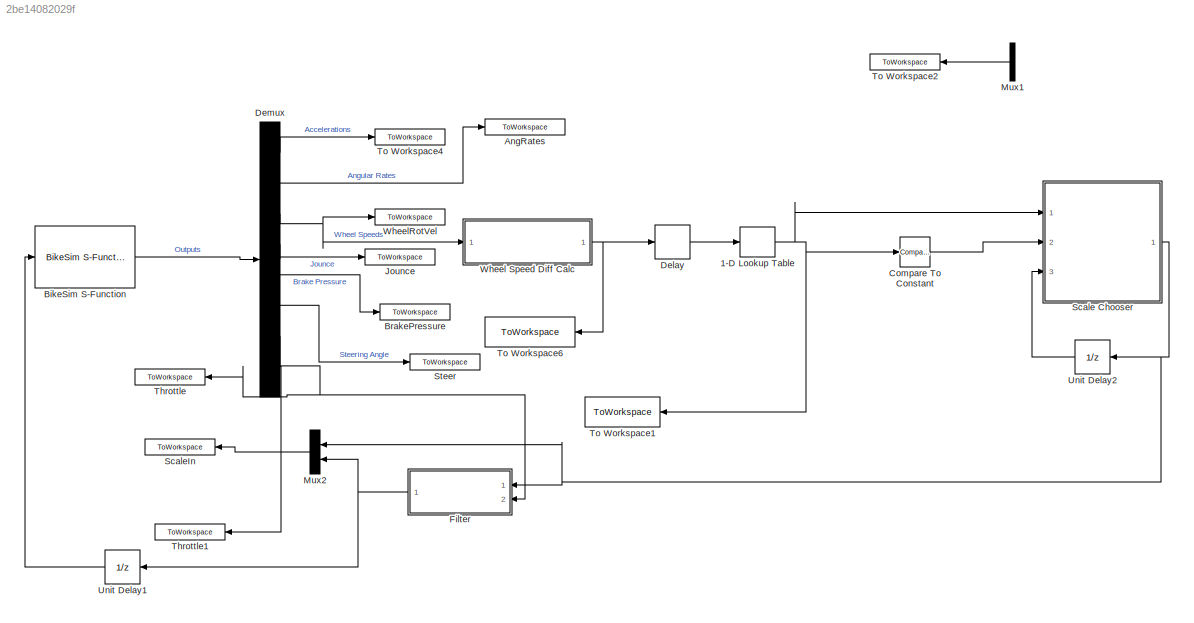
MODEL slx_2be14082029f
KIND model
BLOCK [Lookup_n-D] 1-D Lookup Table
  BreakpointsForDimension1 = y
  ExtrapMethod = Clip
  InternalRulePriority = Speed
  InterpMethod = Flat
  NumberOfTableDimensions = 1
  Ports = [1, 1]
  RndMeth = Simplest
  Table = [1.0000,0.9909,0.9818,0.9727,0.9636,0.9545,0.9455,0.9364,0.9273,0.9182,0.9091,0.9000,0.8909,0.8818,0.8727,0.8636,0.8545,0.8455,0.8364,0.8273,0.8182,0.8091,0.8000,0.7909,0.7818,0.7727,0.7636,0.7545,0.7455,0.7364,0.7273,0.7182,0.7091,0.7000,0.6909,0.6818,0.6727, 0.6636,0.6545,0.6455,0.6364,0.6273,0.6182,0.6091,0.6000,0.5909,0.5818,0.5727,0.5636,0.5545,0.5455,0.5364,0.5273,0.5182,0.5091,0.50, 0.4909,...<+298ch>
  UseLastTableValue = on
BLOCK [ToWorkspace] AngRates
  FixptAsFi = on
  MaxDataPoints = inf
  Ports = [1]
  SampleTime = -1
  Save2DSignal = 3-D array (concatenate along third dimension)
  SaveFormat = Timeseries
  VariableName = AngRates
BLOCK [Reference] BikeSim S-Function  REF=Solver_SF/BikeSim S-Function
  AttributesFormatString = Vehicle Code: %<VehicleCode>
  Ports = [1, 1]
  Priority = 1
  SIMFILE = simfile.sim
  SourceBlock = Solver_SF/BikeSim S-Function
  SourceType = Vehicle math model library
  VehicleCode = fixed_caster
BLOCK [ToWorkspace] BrakePressure
  FixptAsFi = on
  MaxDataPoints = inf
  Ports = [1]
  SampleTime = -1
  Save2DSignal = 3-D array (concatenate along third dimension)
  SaveFormat = Timeseries
  VariableName = BrakePressure
BLOCK [Reference] Compare To Constant  REF=simulink/Logic and Bit
Operations/Compare
To Constant
  OutDataTypeStr = boolean
  Ports = [1, 1]
  SourceBlock = simulink/Logic and Bit\nOperations/Compare\nTo Constant
  SourceType = Compare To Constant
  ZeroCross = on
  const = 1
  relop = ~=
BLOCK [Delay] Delay
  DelayLength = 10
  InputPortMap = u0
  Ports = [1, 1]
BLOCK [Demux] Demux
  Outputs = [3 2 2 2 2 1 1 3]
  Ports = [1, 8]
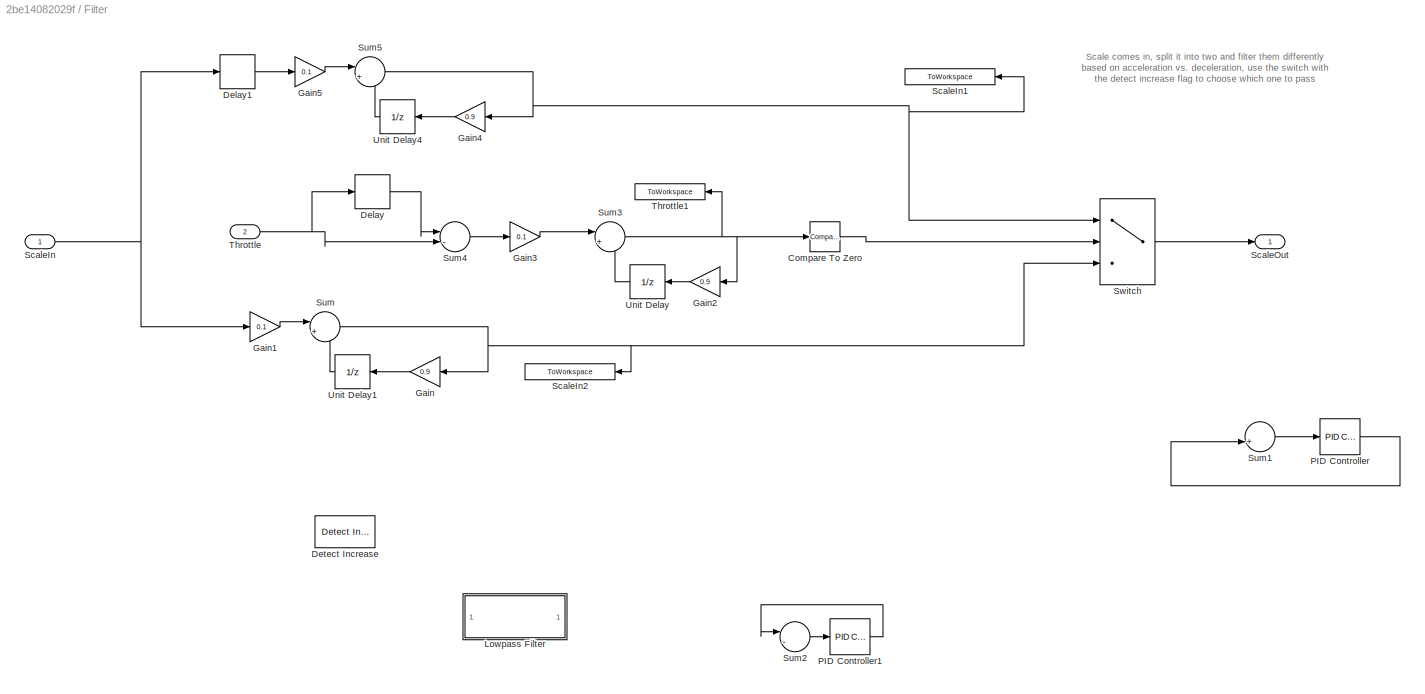
BLOCK [SubSystem] Filter
  Ports = [2, 1]
  RequestExecContextInheritance = off
BLOCK [Reference] Filter/Compare To Zero  REF=simulink/Logic and Bit
Operations/Compare
To Zero
  OutDataTypeStr = boolean
  Ports = [1, 1]
  SourceBlock = simulink/Logic and Bit\nOperations/Compare\nTo Zero
  SourceType = Compare To Zero
  ZeroCross = on
  relop = >
BLOCK [Delay] Filter/Delay
  DelayLength = 15
  InputPortMap = u0
  Ports = [1, 1]
BLOCK [Delay] Filter/Delay1
  DelayLength = 10
  InputPortMap = u0
  Ports = [1, 1]
BLOCK [Reference] Filter/Detect Increase  REF=simulink/Logic and Bit
Operations/Detect
Increase
  InputProcessing = Inherited
  OutDataTypeStr = uint8
  Ports = [1, 1]
  SourceBlock = simulink/Logic and Bit\nOperations/Detect\nIncrease
  SourceType = Detect Increase
  vinit = 0.0
BLOCK [Gain] Filter/Gain
  Gain = 0.9
  OutDataTypeStr = Inherit: Inherit via internal rule
  ParamDataTypeStr = Inherit: Inherit via internal rule
  SaturateOnIntegerOverflow = off
BLOCK [Gain] Filter/Gain1
  Gain = 0.1
  OutDataTypeStr = Inherit: Inherit via internal rule
  ParamDataTypeStr = Inherit: Inherit via internal rule
  SaturateOnIntegerOverflow = off
BLOCK [Gain] Filter/Gain2
  Gain = 0.9
  OutDataTypeStr = Inherit: Inherit via internal rule
  ParamDataTypeStr = Inherit: Inherit via internal rule
  SaturateOnIntegerOverflow = off
BLOCK [Gain] Filter/Gain3
  Gain = 0.1
  OutDataTypeStr = Inherit: Inherit via internal rule
  ParamDataTypeStr = Inherit: Inherit via internal rule
  SaturateOnIntegerOverflow = off
BLOCK [Gain] Filter/Gain4
  Gain = 0.9
  OutDataTypeStr = Inherit: Inherit via internal rule
  ParamDataTypeStr = Inherit: Inherit via internal rule
  SaturateOnIntegerOverflow = off
BLOCK [Gain] Filter/Gain5
  Gain = 0.1
  OutDataTypeStr = Inherit: Inherit via internal rule
  ParamDataTypeStr = Inherit: Inherit via internal rule
  SaturateOnIntegerOverflow = off
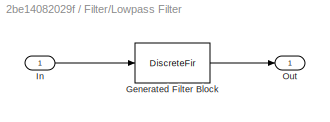
BLOCK [SubSystem] Filter/Lowpass Filter
  CopyFcn = fdesignblkfcn(gcbh, {'CopyFcn'});
  DialogController = fdesignblkfcn
  InitFcn = fdesignblkfcn(gcbh, {'InitFcn'});
  Ports = [1, 1]
  RequestExecContextInheritance = off
  UserDataPersistent = on
BLOCK [DiscreteFir] Filter/Lowpass Filter/Generated Filter Block
  Coefficients = [-0.0024228738523269142 -0.002083244982079274 0.0067703446401187091 0.016731945423489058 0.011117076081077608 -0.0062311454141445394 -0.008401617186026911 0.0092567976151380175 0.012982883808855752 -0.010121234703278968 -0.018273518733782485 0.011431962071777957 0.02617588858040763 -0.012489027835322923 -0.037996623145463579 0.013388945199366963 0.058155465814729891 -0.014048043515808939 -0.102724...<+525ch>
  InputProcessing = Columns as channels (frame based)
  Ports = [1, 1]
  Tag = BlockMethodSubSystem
BLOCK [Inport] Filter/Lowpass Filter/In
  IconDisplay = Port number
BLOCK [Outport] Filter/Lowpass Filter/Out
  IconDisplay = Port number
BLOCK [Reference] Filter/PID Controller  REF=simulink/Continuous/PID Controller
  AntiWindupMode = none
  Controller = PID
  D = 0.01
  DOutDataTypeStr = Inherit: Inherit via internal rule
  DOutMax = []
  DOutMin = []
  DParamDataTypeStr = Inherit: Inherit via internal rule
  DParamMax = []
  DParamMin = []
  ExternalReset = none
  FilterContinuousStateAttributes = ''
  FilterMethod = Forward Euler
  FilterOutDataTypeStr = Inherit: Inherit via internal rule
  FilterOutMax = []
  FilterOutMin = []
  FilterRTWStateStorageClass = Auto
  FilterStateMustResolveToSignalObject = off
  Form = Parallel
  I = 0.4
  IOutDataTypeStr = Inherit: Inherit via internal rule
  IOutMax = []
  IOutMin = []
  IParamDataTypeStr = Inherit: Inherit via internal rule
  IParamMax = []
  IParamMin = []
  IgnoreLimit = off
  InitialConditionForFilter = 0
  InitialConditionForIntegrator = 1
  InitialConditionSource = internal
  IntegratorContinuousStateAttributes = ''
  IntegratorMethod = Forward Euler
  IntegratorOutDataTypeStr = Inherit: Inherit via internal rule
  IntegratorOutMax = []
  IntegratorOutMin = []
  IntegratorRTWStateStorageClass = Auto
  IntegratorStateMustResolveToSignalObject = off
  Kb = 1
  KbOutDataTypeStr = Inherit: Inherit via internal rule
  KbOutMax = []
  KbOutMin = []
  KbParamDataTypeStr = Inherit: Inherit via internal rule
  KbParamMax = []
  KbParamMin = []
  Kt = 1
  KtOutDataTypeStr = Inherit: Inherit via internal rule
  KtOutMax = []
  KtOutMin = []
  KtParamDataTypeStr = Inherit: Inherit via internal rule
  KtParamMax = []
  KtParamMin = []
  LimitOutput = off
  LinearizeAsGain = on
  LockScale = off
  LowerSaturationLimit = -inf
  N = 100
  NOutDataTypeStr = Inherit: Inherit via internal rule
  NOutMax = []
  NOutMin = []
  NParamDataTypeStr = Inherit: Inherit via internal rule
  NParamMax = []
  NParamMin = []
  P = 0.01
  POutDataTypeStr = Inherit: Inherit via internal rule
  POutMax = []
  POutMin = []
  PParamDataTypeStr = Inherit: Inherit via internal rule
  PParamMax = []
  PParamMin = []
  Ports = [1, 1]
  RndMeth = Floor
  SampleTime = 1
  SaturateOnIntegerOverflow = off
  SaturationOutDataTypeStr = Inherit: Same as input
  SaturationOutMax = []
  SaturationOutMin = []
  SourceBlock = simulink/Continuous/PID Controller
  SourceType = PID 1dof
  SumAccumDataTypeStr = Inherit: Inherit via internal rule
  SumDAccumDataTypeStr = Inherit: Inherit via internal rule
  SumDOutDataTypeStr = Inherit: Inherit via internal rule
  SumDOutMax = []
  SumDOutMin = []
  SumI1AccumDataTypeStr = Inherit: Inherit via internal rule
  SumI1OutDataTypeStr = Inherit: Inherit via internal rule
  SumI1OutMax = []
  SumI1OutMin = []
  SumI2AccumDataTypeStr = Inherit: Inherit via internal rule
  SumI2OutDataTypeStr = Inherit: Inherit via internal rule
  SumI2OutMax = []
  SumI2OutMin = []
  SumI3AccumDataTypeStr = Inherit: Inherit via internal rule
  SumI3OutDataTypeStr = Inherit: Inherit via internal rule
  SumI3OutMax = []
  SumI3OutMin = []
  SumOutDataTypeStr = Inherit: Inherit via internal rule
  SumOutMax = []
  SumOutMin = []
  TimeDomain = Continuous-time
  TrackingMode = off
  UpperSaturationLimit = inf
  ZeroCross = on
BLOCK [Reference] Filter/PID Controller1  REF=simulink/Continuous/PID Controller
  AntiWindupMode = none
  Controller = PID
  D = 0
  DOutDataTypeStr = Inherit: Inherit via internal rule
  DOutMax = []
  DOutMin = []
  DParamDataTypeStr = Inherit: Inherit via internal rule
  DParamMax = []
  DParamMin = []
  ExternalReset = none
  FilterContinuousStateAttributes = ''
  FilterMethod = Forward Euler
  FilterOutDataTypeStr = Inherit: Inherit via internal rule
  FilterOutMax = []
  FilterOutMin = []
  FilterRTWStateStorageClass = Auto
  FilterStateMustResolveToSignalObject = off
  Form = Parallel
  I = 0.602559586074357
  IOutDataTypeStr = Inherit: Inherit via internal rule
  IOutMax = []
  IOutMin = []
  IParamDataTypeStr = Inherit: Inherit via internal rule
  IParamMax = []
  IParamMin = []
  IgnoreLimit = off
  InitialConditionForFilter = 0
  InitialConditionForIntegrator = 1
  InitialConditionSource = internal
  IntegratorContinuousStateAttributes = ''
  IntegratorMethod = Forward Euler
  IntegratorOutDataTypeStr = Inherit: Inherit via internal rule
  IntegratorOutMax = []
  IntegratorOutMin = []
  IntegratorRTWStateStorageClass = Auto
  IntegratorStateMustResolveToSignalObject = off
  Kb = 1
  KbOutDataTypeStr = Inherit: Inherit via internal rule
  KbOutMax = []
  KbOutMin = []
  KbParamDataTypeStr = Inherit: Inherit via internal rule
  KbParamMax = []
  KbParamMin = []
  Kt = 1
  KtOutDataTypeStr = Inherit: Inherit via internal rule
  KtOutMax = []
  KtOutMin = []
  KtParamDataTypeStr = Inherit: Inherit via internal rule
  KtParamMax = []
  KtParamMin = []
  LimitOutput = off
  LinearizeAsGain = on
  LockScale = off
  LowerSaturationLimit = -inf
  N = 100
  NOutDataTypeStr = Inherit: Inherit via internal rule
  NOutMax = []
  NOutMin = []
  NParamDataTypeStr = Inherit: Inherit via internal rule
  NParamMax = []
  NParamMin = []
  P = 0
  POutDataTypeStr = Inherit: Inherit via internal rule
  POutMax = []
  POutMin = []
  PParamDataTypeStr = Inherit: Inherit via internal rule
  PParamMax = []
  PParamMin = []
  Ports = [1, 1]
  RndMeth = Floor
  SampleTime = 1
  SaturateOnIntegerOverflow = off
  SaturationOutDataTypeStr = Inherit: Same as input
  SaturationOutMax = []
  SaturationOutMin = []
  SourceBlock = simulink/Continuous/PID Controller
  SourceType = PID 1dof
  SumAccumDataTypeStr = Inherit: Inherit via internal rule
  SumDAccumDataTypeStr = Inherit: Inherit via internal rule
  SumDOutDataTypeStr = Inherit: Inherit via internal rule
  SumDOutMax = []
  SumDOutMin = []
  SumI1AccumDataTypeStr = Inherit: Inherit via internal rule
  SumI1OutDataTypeStr = Inherit: Inherit via internal rule
  SumI1OutMax = []
  SumI1OutMin = []
  SumI2AccumDataTypeStr = Inherit: Inherit via internal rule
  SumI2OutDataTypeStr = Inherit: Inherit via internal rule
  SumI2OutMax = []
  SumI2OutMin = []
  SumI3AccumDataTypeStr = Inherit: Inherit via internal rule
  SumI3OutDataTypeStr = Inherit: Inherit via internal rule
  SumI3OutMax = []
  SumI3OutMin = []
  SumOutDataTypeStr = Inherit: Inherit via internal rule
  SumOutMax = []
  SumOutMin = []
  TimeDomain = Continuous-time
  TrackingMode = off
  UpperSaturationLimit = inf
  ZeroCross = on
BLOCK [Inport] Filter/ScaleIn
  IconDisplay = Port number
BLOCK [ToWorkspace] Filter/ScaleIn1
  FixptAsFi = on
  MaxDataPoints = inf
  Ports = [1]
  SampleTime = -1
  Save2DSignal = 3-D array (concatenate along third dimension)
  SaveFormat = Timeseries
  VariableName = UpScale
BLOCK [ToWorkspace] Filter/ScaleIn2
  FixptAsFi = on
  MaxDataPoints = inf
  Ports = [1]
  SampleTime = -1
  Save2DSignal = 3-D array (concatenate along third dimension)
  SaveFormat = Timeseries
  VariableName = DownScale
BLOCK [Outport] Filter/ScaleOut
  IconDisplay = Port number
BLOCK [Sum] Filter/Sum
  IconShape = round
  InputSameDT = off
  Inputs = |++
  OutDataTypeStr = Inherit: Inherit via internal rule
  Ports = [2, 1]
  SaturateOnIntegerOverflow = off
BLOCK [Sum] Filter/Sum1
  InputSameDT = off
  Inputs = |+-
  OutDataTypeStr = Inherit: Inherit via internal rule
  Ports = [2, 1]
  SaturateOnIntegerOverflow = off
BLOCK [Sum] Filter/Sum2
  InputSameDT = off
  Inputs = |-+
  OutDataTypeStr = Inherit: Inherit via internal rule
  Ports = [2, 1]
  SaturateOnIntegerOverflow = off
BLOCK [Sum] Filter/Sum3
  IconShape = round
  InputSameDT = off
  Inputs = |++
  OutDataTypeStr = Inherit: Inherit via internal rule
  Ports = [2, 1]
  SaturateOnIntegerOverflow = off
BLOCK [Sum] Filter/Sum4
  InputSameDT = off
  Inputs = |-+
  OutDataTypeStr = Inherit: Inherit via internal rule
  Ports = [2, 1]
  SaturateOnIntegerOverflow = off
BLOCK [Sum] Filter/Sum5
  IconShape = round
  InputSameDT = off
  Inputs = |++
  OutDataTypeStr = Inherit: Inherit via internal rule
  Ports = [2, 1]
  SaturateOnIntegerOverflow = off
BLOCK [Switch] Filter/Switch
  Criteria = u2 ~= 0
  InputSameDT = off
  OutMax = [1]
  OutMin = [0.1]
  SaturateOnIntegerOverflow = off
BLOCK [Inport] Filter/Throttle
  IconDisplay = Port number
  Port = 2
BLOCK [ToWorkspace] Filter/Throttle1
  FixptAsFi = on
  MaxDataPoints = inf
  Ports = [1]
  SampleTime = -1
  Save2DSignal = 3-D array (concatenate along third dimension)
  SaveFormat = Timeseries
  VariableName = ThrotDiff
BLOCK [UnitDelay] Filter/Unit Delay
  InputProcessing = Elements as channels (sample based)
  SampleTime = -1
BLOCK [UnitDelay] Filter/Unit Delay1
  InputProcessing = Elements as channels (sample based)
  SampleTime = -1
BLOCK [UnitDelay] Filter/Unit Delay4
  InputProcessing = Elements as channels (sample based)
  SampleTime = -1
BLOCK [ToWorkspace] Jounce
  FixptAsFi = on
  MaxDataPoints = inf
  Ports = [1]
  SampleTime = -1
  Save2DSignal = 3-D array (concatenate along third dimension)
  SaveFormat = Timeseries
  VariableName = Jounce
BLOCK [Mux] Mux1
  DisplayOption = bar
  Inputs = 2
  Ports = [2, 1]
BLOCK [Mux] Mux2
  DisplayOption = bar
  Inputs = 2
  Ports = [2, 1]
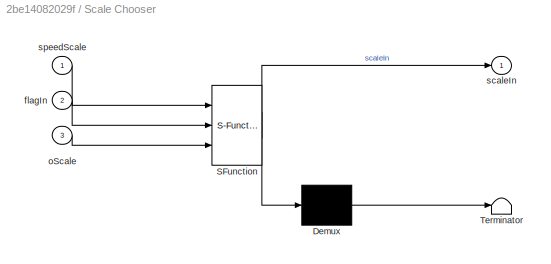
BLOCK [SubSystem] Scale Chooser
  ErrorFcn = Stateflow.Translate.translate
  PermitHierarchicalResolution = ExplicitOnly
  Ports = [3, 1]
  RequestExecContextInheritance = off
  SFBlockType = MATLAB Function
  TreatAsAtomicUnit = on
BLOCK [Demux] Scale Chooser/ Demux 
  Outputs = 1
  Ports = [1, 1]
BLOCK [S-Function] Scale Chooser/ SFunction 
  EnableBusSupport = on
  FunctionName = sf_sfun
  PortCounts = [3 2]
  Ports = [3, 2]
  Tag = Stateflow S-Function SimpleTractionModel 2
BLOCK [Terminator] Scale Chooser/ Terminator 
BLOCK [Inport] Scale Chooser/flagIn
  IconDisplay = Port number
  Port = 2
BLOCK [Inport] Scale Chooser/oScale
  IconDisplay = Port number
  Port = 3
BLOCK [Outport] Scale Chooser/scaleIn
  IconDisplay = Port number
BLOCK [Inport] Scale Chooser/speedScale
  IconDisplay = Port number
BLOCK [ToWorkspace] ScaleIn
  FixptAsFi = on
  MaxDataPoints = inf
  Ports = [1]
  SampleTime = -1
  Save2DSignal = 3-D array (concatenate along third dimension)
  SaveFormat = Timeseries
  VariableName = ScaleIn
BLOCK [ToWorkspace] Steer
  FixptAsFi = on
  MaxDataPoints = inf
  Ports = [1]
  SampleTime = -1
  Save2DSignal = 3-D array (concatenate along third dimension)
  SaveFormat = Timeseries
  VariableName = Steer
BLOCK [ToWorkspace] Throttle
  FixptAsFi = on
  MaxDataPoints = inf
  Ports = [1]
  SampleTime = -1
  Save2DSignal = 3-D array (concatenate along third dimension)
  SaveFormat = Timeseries
  VariableName = ThrottleOut
BLOCK [ToWorkspace] Throttle1
  FixptAsFi = on
  MaxDataPoints = inf
  Ports = [1]
  SampleTime = -1
  Save2DSignal = 3-D array (concatenate along third dimension)
  SaveFormat = Timeseries
  VariableName = Torque
BLOCK [ToWorkspace] To Workspace1
  FixptAsFi = on
  MaxDataPoints = inf
  Ports = [1]
  SampleTime = -1
  Save2DSignal = 3-D array (concatenate along third dimension)
  SaveFormat = Timeseries
  VariableName = ScalingFactors
BLOCK [ToWorkspace] To Workspace2
  FixptAsFi = on
  MaxDataPoints = inf
  Ports = [1]
  SampleTime = -1
  Save2DSignal = 3-D array (concatenate along third dimension)
  SaveFormat = Timeseries
  VariableName = flag
BLOCK [ToWorkspace] To Workspace4
  FixptAsFi = on
  MaxDataPoints = inf
  Ports = [1]
  SampleTime = -1
  Save2DSignal = 3-D array (concatenate along third dimension)
  SaveFormat = Timeseries
  VariableName = Accelerations
BLOCK [ToWorkspace] To Workspace6
  FixptAsFi = on
  MaxDataPoints = inf
  Ports = [1]
  SampleTime = -1
  Save2DSignal = 3-D array (concatenate along third dimension)
  SaveFormat = Timeseries
  VariableName = WheelSpeedDiff
BLOCK [UnitDelay] Unit Delay1
  InputProcessing = Elements as channels (sample based)
  SampleTime = -1
BLOCK [UnitDelay] Unit Delay2
  InputProcessing = Elements as channels (sample based)
  SampleTime = -1
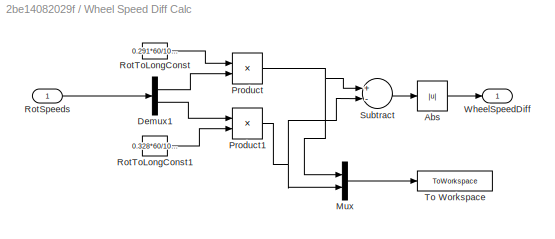
BLOCK [SubSystem] Wheel Speed Diff Calc
  Ports = [1, 1]
  RequestExecContextInheritance = off
BLOCK [Abs] Wheel Speed Diff Calc/Abs
  SaturateOnIntegerOverflow = off
BLOCK [Demux] Wheel Speed Diff Calc/Demux1
  DisplayOption = bar
  Outputs = 2
  Ports = [1, 2]
BLOCK [Mux] Wheel Speed Diff Calc/Mux
  DisplayOption = bar
  Inputs = 2
  Ports = [2, 1]
BLOCK [Product] Wheel Speed Diff Calc/Product
  InputSameDT = off
  OutDataTypeStr = Inherit: Inherit via internal rule
  Ports = [2, 1]
  RndMeth = Floor
  SaturateOnIntegerOverflow = off
BLOCK [Product] Wheel Speed Diff Calc/Product1
  InputSameDT = off
  OutDataTypeStr = Inherit: Inherit via internal rule
  Ports = [2, 1]
  RndMeth = Floor
  SaturateOnIntegerOverflow = off
BLOCK [Inport] Wheel Speed Diff Calc/RotSpeeds
  IconDisplay = Port number
BLOCK [Constant] Wheel Speed Diff Calc/RotToLongConst
  Value = 0.291*60/1000*2*pi
BLOCK [Constant] Wheel Speed Diff Calc/RotToLongConst1
  Value = 0.328*60/1000*2*pi
BLOCK [Sum] Wheel Speed Diff Calc/Subtract
  InputSameDT = off
  Inputs = +-
  OutDataTypeStr = Inherit: Inherit via internal rule
  Ports = [2, 1]
  SaturateOnIntegerOverflow = off
BLOCK [ToWorkspace] Wheel Speed Diff Calc/To Workspace
  FixptAsFi = on
  MaxDataPoints = inf
  Ports = [1]
  SampleTime = -1
  Save2DSignal = 3-D array (concatenate along third dimension)
  SaveFormat = Timeseries
  VariableName = WheelLongVel
BLOCK [Outport] Wheel Speed Diff Calc/WheelSpeedDiff
  IconDisplay = Port number
BLOCK [ToWorkspace] WheelRotVel
  FixptAsFi = on
  MaxDataPoints = inf
  Ports = [1]
  SampleTime = -1
  Save2DSignal = 3-D array (concatenate along third dimension)
  SaveFormat = Timeseries
  VariableName = WheelRotVel
ANNOTATION Filter: Scale comes in, split it into two and filter them differently based on acceleration vs. deceleration, use the switch with the detect increase flag to choose which one to pass
NET 1-D Lookup Table:1 -> Compare To Constant:1, Scale Chooser:1, To Workspace1:1
LINE BikeSim S-Function:1 -> Demux:1
LINE Compare To Constant:1 -> Scale Chooser:2
LINE Delay:1 -> 1-D Lookup Table:1
LINE Demux:1 -> To Workspace4:1
LINE Demux:2 -> AngRates:1
NET Demux:3 -> Wheel Speed Diff Calc:1, WheelRotVel:1
LINE Demux:4 -> Jounce:1
LINE Demux:5 -> BrakePressure:1
LINE Demux:6 -> Steer:1
NET Demux:7 -> Filter:2, Throttle:1
LINE Demux:8 -> Throttle1:1
LINE Filter/Compare To Zero:1 -> Filter/Switch:2
LINE Filter/Delay1:1 -> Filter/Gain5:1
LINE Filter/Delay:1 -> Filter/Sum4:1
LINE Filter/Gain1:1 -> Filter/Sum:1
LINE Filter/Gain2:1 -> Filter/Unit Delay:1
LINE Filter/Gain3:1 -> Filter/Sum3:1
LINE Filter/Gain4:1 -> Filter/Unit Delay4:1
LINE Filter/Gain5:1 -> Filter/Sum5:1
LINE Filter/Gain:1 -> Filter/Unit Delay1:1
LINE Filter/PID Controller1:1 -> Filter/Sum2:1
LINE Filter/PID Controller:1 -> Filter/Sum1:2
NET Filter/ScaleIn:1 -> Filter/Delay1:1, Filter/Gain1:1
LINE Filter/Sum1:1 -> Filter/PID Controller:1
LINE Filter/Sum2:1 -> Filter/PID Controller1:1
NET Filter/Sum3:1 -> Filter/Compare To Zero:1, Filter/Gain2:1, Filter/Throttle1:1
LINE Filter/Sum4:1 -> Filter/Gain3:1
NET Filter/Sum5:1 -> Filter/Gain4:1, Filter/ScaleIn1:1, Filter/Switch:1
NET Filter/Sum:1 -> Filter/Gain:1, Filter/ScaleIn2:1, Filter/Switch:3
LINE Filter/Switch:1 -> Filter/ScaleOut:1
NET Filter/Throttle:1 -> Filter/Delay:1, Filter/Sum4:2
LINE Filter/Unit Delay1:1 -> Filter/Sum:2
LINE Filter/Unit Delay4:1 -> Filter/Sum5:2
LINE Filter/Unit Delay:1 -> Filter/Sum3:2
NET Filter:1 -> Mux2:2, Unit Delay1:1
LINE Mux1:1 -> To Workspace2:1
LINE Mux2:1 -> ScaleIn:1
NET Scale Chooser:1 -> Filter:1, Mux2:1, Unit Delay2:1
LINE Unit Delay1:1 -> BikeSim S-Function:1
LINE Unit Delay2:1 -> Scale Chooser:3
LINE Wheel Speed Diff Calc/Abs:1 -> Wheel Speed Diff Calc/WheelSpeedDiff:1
LINE Wheel Speed Diff Calc/Demux1:1 -> Wheel Speed Diff Calc/Product:2
LINE Wheel Speed Diff Calc/Demux1:2 -> Wheel Speed Diff Calc/Product1:1
LINE Wheel Speed Diff Calc/Mux:1 -> Wheel Speed Diff Calc/To Workspace:1
NET Wheel Speed Diff Calc/Product1:1 -> Wheel Speed Diff Calc/Mux:2, Wheel Speed Diff Calc/Subtract:2
NET Wheel Speed Diff Calc/Product:1 -> Wheel Speed Diff Calc/Mux:1, Wheel Speed Diff Calc/Subtract:1
LINE Wheel Speed Diff Calc/RotSpeeds:1 -> Wheel Speed Diff Calc/Demux1:1
LINE Wheel Speed Diff Calc/RotToLongConst1:1 -> Wheel Speed Diff Calc/Product1:2
LINE Wheel Speed Diff Calc/RotToLongConst:1 -> Wheel Speed Diff Calc/Product:1
LINE Wheel Speed Diff Calc/Subtract:1 -> Wheel Speed Diff Calc/Abs:1
NET Wheel Speed Diff Calc:1 -> Delay:1, To Workspace6:1
note: NET lines group one-source signal fan-out (src -> all destinations, sorted); 1:1 wires keep LINE
